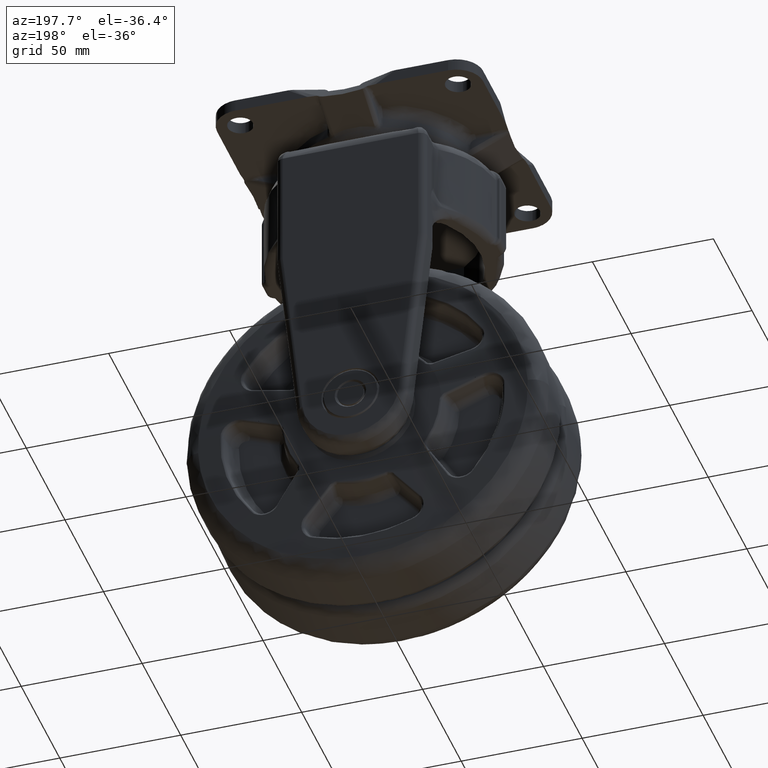
[diagram: clean part render]
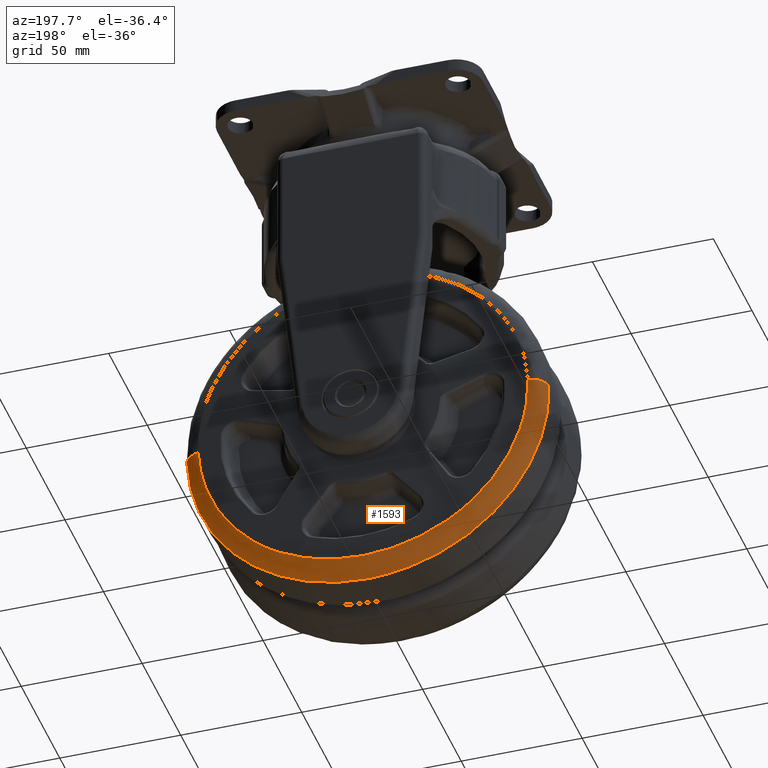
[diagram: same view with one face highlighted and labeled with its STEP entity id]
A machine part, auxiliary view. The second image highlights one B-rep face of the part: STEP entity #1593.
In plain terms, the highlighted face is a freeform B-spline surface patch.
Its self-contained STEP definition (entity closure, byte-faithful):
#973=CARTESIAN_POINT('',(0.0,20.747409571790790,-201.816297328990290));
#974=VERTEX_POINT('',#973);
#1039=CARTESIAN_POINT('',(-74.763135994239576,20.747423776865020,-124.180160174054390));
#1040=VERTEX_POINT('',#1039);
#1054=CARTESIAN_POINT('',(-74.763135994239576,20.747423776865023,-124.180160174054420));
#1055=CARTESIAN_POINT('',(-74.816295035986613,20.747423519746221,-125.589579438656910));
#1056=CARTESIAN_POINT('',(-74.816295023748012,20.747423262415840,-127.000000846838600));
#1057=CARTESIAN_POINT('',(-74.816294374547894,20.747409612235813,-201.816297305410640));
#1058=CARTESIAN_POINT('',(0.0,20.747409571790790,-201.816297328990290));
#1066=(BOUNDED_CURVE()B_SPLINE_CURVE(2,(#1054,#1055,#1056,#1057,#1058),.UNSPECIFIED.,.F.,.U.)B_SPLINE_CURVE_WITH_KNOTS((3,2,3),(0.743386526736868,0.750000000000000,1.0),.UNSPECIFIED.)CURVE()GEOMETRIC_REPRESENTATION_ITEM()RATIONAL_B_SPLINE_CURVE((0.984913606530816,0.992251834113699,1.0,0.707106781186547,1.0))REPRESENTATION_ITEM(''));
#1067=EDGE_CURVE('',#1040,#974,#1066,.T.);
#1106=CARTESIAN_POINT('',(74.763136060742937,20.747422751017151,-129.819839828453890));
#1107=VERTEX_POINT('',#1106);
#1108=CARTESIAN_POINT('',(0.0,20.747409571790790,-201.816297328990290));
#1109=CARTESIAN_POINT('',(72.047647402765833,20.747409613760894,-201.816297353459110));
#1110=CARTESIAN_POINT('',(74.763136060742937,20.747422751017151,-129.819839828453890));
#1118=(BOUNDED_CURVE()B_SPLINE_CURVE(2,(#1108,#1109,#1110),.UNSPECIFIED.,.F.,.U.)B_SPLINE_CURVE_WITH_KNOTS((3,3),(0.0,0.243386530899086),.UNSPECIFIED.)CURVE()GEOMETRIC_REPRESENTATION_ITEM()RATIONAL_B_SPLINE_CURVE((1.0,0.714854942196508,0.984913615767506))REPRESENTATION_ITEM(''));
#1119=EDGE_CURVE('',#974,#1107,#1118,.T.);
#1200=CARTESIAN_POINT('',(68.121653313829142,27.292200943322960,-129.569343155684810));
#1201=VERTEX_POINT('',#1200);
#1202=CARTESIAN_POINT('',(68.121653313829142,27.292200943322960,-129.569343155684830));
#1203=CARTESIAN_POINT('',(74.364059216399838,26.988864736283091,-129.804787859405790));
#1204=CARTESIAN_POINT('',(74.763136060742937,20.747422751017154,-129.819839828453920));
#1212=(BOUNDED_CURVE()B_SPLINE_CURVE(2,(#1202,#1203,#1204),.UNSPECIFIED.,.F.,.U.)B_SPLINE_CURVE_WITH_KNOTS((3,3),(-1.709076496446240,-0.280465581251247),.UNSPECIFIED.)CURVE()GEOMETRIC_REPRESENTATION_ITEM()RATIONAL_B_SPLINE_CURVE((0.889577354070573,0.664607206706167,0.892895360425759))REPRESENTATION_ITEM(''));
#1213=EDGE_CURVE('',#1201,#1107,#1212,.T.);
#1379=CARTESIAN_POINT('',(-68.121653290269720,27.292200944486211,-124.430656855273400));
#1380=VERTEX_POINT('',#1379);
#1394=CARTESIAN_POINT('',(-68.121653290269720,27.292200944486211,-124.430656855273400));
#1395=CARTESIAN_POINT('',(-74.364058292190890,26.988864802604969,-124.195212180487360));
#1396=CARTESIAN_POINT('',(-74.763135994239562,20.747423776865023,-124.180160174054380));
#1404=(BOUNDED_CURVE()B_SPLINE_CURVE(2,(#1394,#1395,#1396),.UNSPECIFIED.,.F.,.U.)B_SPLINE_CURVE_WITH_KNOTS((3,3),(-1.709076500112734,-0.280465738991367),.UNSPECIFIED.)CURVE()GEOMETRIC_REPRESENTATION_ITEM()RATIONAL_B_SPLINE_CURVE((0.889577355225333,0.664607230960358,0.892895310012877))REPRESENTATION_ITEM(''));
#1405=EDGE_CURVE('',#1380,#1040,#1404,.T.);
#1411=CARTESIAN_POINT('',(-67.589976238346310,27.299390518790716,-122.556429377088320));
#1412=CARTESIAN_POINT('',(-67.625441019539394,27.299390518790723,-123.496716210031390));
#1413=CARTESIAN_POINT('',(-70.213302108030362,27.299390518790727,-192.109340484948210));
#1414=CARTESIAN_POINT('',(-2.551980811541131,27.299390518790716,-194.661321296489210));
#1415=CARTESIAN_POINT('',(65.109340484948063,27.299390518790727,-197.213302108030320));
#1416=CARTESIAN_POINT('',(67.697201573439045,27.299390518790727,-128.600677833113680));
#1417=CARTESIAN_POINT('',(67.732666354632144,27.299390518790727,-127.660391000170580));
#1418=CARTESIAN_POINT('',(-74.710507794462885,27.422864195151444,-122.088303974429550));
#1419=CARTESIAN_POINT('',(-74.749708752344731,27.422864195151451,-123.127649017456380));
#1420=CARTESIAN_POINT('',(-77.610198232928411,27.422864195151458,-198.968539723103530));
#1421=CARTESIAN_POINT('',(-2.820829254912433,27.422864195151444,-201.789368978016060));
#1422=CARTESIAN_POINT('',(71.968539723103561,27.422864195151458,-204.610198232928380));
#1423=CARTESIAN_POINT('',(74.829029203687242,27.422864195151455,-128.769307527281230));
#1424=CARTESIAN_POINT('',(74.868230161569087,27.422864195151451,-127.729962484254400));
#1425=CARTESIAN_POINT('',(-74.698554404679371,20.288689709245219,-122.089089826631920));
#1426=CARTESIAN_POINT('',(-74.737749090560897,20.288689709245226,-123.128268578506660));
#1427=CARTESIAN_POINT('',(-77.597780903987115,20.288689709245226,-198.957025037514370));
#1428=CARTESIAN_POINT('',(-2.820377933236378,20.288689709245226,-201.777402970750790));
#1429=CARTESIAN_POINT('',(71.957025037514356,20.288689709245226,-204.597780903987170));
#1430=CARTESIAN_POINT('',(74.817056850940617,20.288689709245222,-128.769024444979440));
#1431=CARTESIAN_POINT('',(74.856251536822171,20.288689709245226,-127.729845693104780));
#1439=(BOUNDED_SURFACE()B_SPLINE_SURFACE(2,2,((#1411,#1418,#1425),(#1412,#1419,#1426),(#1413,#1420,#1427),(#1414,#1421,#1428),(#1415,#1422,#1429),(#1416,#1423,#1430),(#1417,#1424,#1431)),.UNSPECIFIED.,.F.,.F.,.U.)B_SPLINE_SURFACE_WITH_KNOTS((3,1,2,1,3),(3,3),(0.0,2.479667028828120,126.463018470231300,250.446369911634410,252.926036940462410),(0.0,11.756312226007900),.UNSPECIFIED.)GEOMETRIC_REPRESENTATION_ITEM()RATIONAL_B_SPLINE_SURFACE(((0.923881399524395,0.648343537570387,0.927574345031535),(0.918532098545507,0.644589609066181,0.922203661787536),(0.645717748622259,0.453139255351669,0.648298816343595),(0.913182797566620,0.640835680561975,0.916832978543537),(0.645717748622259,0.453139255351669,0.648298816343595),(0.918532098545507,0.644589609066181,0.922203661787535),(0.923881399524394,0.648343537570387,0.927574345031534)))REPRESENTATION_ITEM('')SURFACE());
#1440=ORIENTED_EDGE('',*,*,#1119,.F.);
#1441=ORIENTED_EDGE('',*,*,#1067,.F.);
#1442=ORIENTED_EDGE('',*,*,#1405,.F.);
#1443=CARTESIAN_POINT('',(-65.050352021042613,27.292200982749979,-147.386585614017090));
#1444=VERTEX_POINT('',#1443);
#1445=CARTESIAN_POINT('',(-68.121653290269720,27.292200944486211,-124.430656855273400));
#1446=CARTESIAN_POINT('',(-68.564551615599669,27.292200963108456,-136.173333675338370));
#1447=CARTESIAN_POINT('',(-65.050352021042599,27.292200982749982,-147.386585614017010));
#1455=(BOUNDED_CURVE()B_SPLINE_CURVE(2,(#1445,#1446,#1447),.UNSPECIFIED.,.F.,.U.)B_SPLINE_CURVE_WITH_KNOTS((3,3),(0.174537374707244,0.490427007918861),.UNSPECIFIED.)CURVE()GEOMETRIC_REPRESENTATION_ITEM()RATIONAL_B_SPLINE_CURVE((0.960001292416546,0.931458490598070,0.930618947146541))REPRESENTATION_ITEM(''));
#1456=EDGE_CURVE('',#1380,#1444,#1455,.T.);
#1457=ORIENTED_EDGE('',*,*,#1456,.T.);
#1458=CARTESIAN_POINT('',(-45.126405542180898,27.292201000003750,-178.095681749439510));
#1459=VERTEX_POINT('',#1458);
#1460=CARTESIAN_POINT('',(-65.050352021042599,27.292200982749982,-147.386585614017010));
#1461=CARTESIAN_POINT('',(-59.368086255029645,27.292200992200925,-165.517791850222380));
#1462=CARTESIAN_POINT('',(-45.126405542180898,27.292201000003750,-178.095681749439510));
#1470=(BOUNDED_CURVE()B_SPLINE_CURVE(2,(#1460,#1461,#1462),.UNSPECIFIED.,.F.,.U.)B_SPLINE_CURVE_WITH_KNOTS((3,3),(0.490427007918861,1.0),.UNSPECIFIED.)CURVE()GEOMETRIC_REPRESENTATION_ITEM()RATIONAL_B_SPLINE_CURVE((0.930618947146541,0.929264649241200,1.0))REPRESENTATION_ITEM(''));
#1471=EDGE_CURVE('',#1444,#1459,#1470,.T.);
#1472=ORIENTED_EDGE('',*,*,#1471,.T.);
#1473=CARTESIAN_POINT('',(-45.141463698413602,27.290811667394330,-178.119779836741490));
#1474=VERTEX_POINT('',#1473);
#1475=CARTESIAN_POINT('',(-45.126405542180898,27.292201000003750,-178.095681749439510));
#1476=CARTESIAN_POINT('',(-45.131425411070573,27.291756551513082,-178.103715218934500));
#1477=CARTESIAN_POINT('',(-45.136444817094102,27.291293475927169,-178.111747947689000));
#1478=CARTESIAN_POINT('',(-45.141463698413602,27.290811667394330,-178.119779836741490));
#1479=B_SPLINE_CURVE_WITH_KNOTS('',3,(#1475,#1476,#1477,#1478),.UNSPECIFIED.,.F.,.U.,(4,4),(0.000004208213952,0.000032659492948),.UNSPECIFIED.);
#1480=EDGE_CURVE('',#1459,#1474,#1479,.T.);
#1481=ORIENTED_EDGE('',*,*,#1480,.T.);
#1482=CARTESIAN_POINT('',(-40.069367436829303,27.292200999999949,-182.150765759147990));
#1483=VERTEX_POINT('',#1482);
#1484=CARTESIAN_POINT('',(-45.141463698413602,27.290811667394330,-178.119779836741490));
#1485=CARTESIAN_POINT('',(-43.505799575321511,27.291730011907841,-179.539186026161590));
#1486=CARTESIAN_POINT('',(-41.814895556215731,27.292191610936900,-180.882565477051400));
#1487=CARTESIAN_POINT('',(-40.069369539537483,27.292200999988641,-182.150764231441400));
#1488=CARTESIAN_POINT('',(-40.069367436829303,27.292200999999949,-182.150765759147990));
#1489=B_SPLINE_CURVE_WITH_KNOTS('',3,(#1484,#1485,#1486,#1487,#1488),.UNSPECIFIED.,.F.,.U.,(4,1,4),(0.0,99.999879537280961,100.0),.UNSPECIFIED.);
#1490=EDGE_CURVE('',#1474,#1483,#1489,.T.);
#1491=ORIENTED_EDGE('',*,*,#1490,.T.);
#1492=CARTESIAN_POINT('',(-34.668320571415727,27.290811667537099,-185.728963755242010));
#1493=VERTEX_POINT('',#1492);
#1494=CARTESIAN_POINT('',(-40.069367436829303,27.292200999999949,-182.150765759147990));
#1495=CARTESIAN_POINT('',(-38.323845549421627,27.292210277943589,-183.418961375765410));
#1496=CARTESIAN_POINT('',(-36.523701926578582,27.291786403420669,-184.611976656662790));
#1497=CARTESIAN_POINT('',(-34.668320571415727,27.290811667537099,-185.728963755242010));
#1498=B_SPLINE_CURVE_WITH_KNOTS('',3,(#1494,#1495,#1496,#1497),.UNSPECIFIED.,.F.,.U.,(4,4),(0.500000600784155,1.0),.UNSPECIFIED.);
#1499=EDGE_CURVE('',#1483,#1493,#1498,.T.);
#1500=ORIENTED_EDGE('',*,*,#1499,.T.);
#1501=CARTESIAN_POINT('',(-34.650055156583100,27.292201000003750,-185.707195881281510));
#1502=VERTEX_POINT('',#1501);
#1503=CARTESIAN_POINT('',(-34.668320571415727,27.290811667537099,-185.728963755242010));
#1504=CARTESIAN_POINT('',(-34.662232099882971,27.291274780935598,-185.721707797348300));
#1505=CARTESIAN_POINT('',(-34.656143628272133,27.291737891758871,-185.714451839361490));
#1506=CARTESIAN_POINT('',(-34.650055156583100,27.292201000003750,-185.707195881281510));
#1507=QUASI_UNIFORM_CURVE('',3,(#1503,#1504,#1505,#1506),.UNSPECIFIED.,.F.,.U.);
#1508=EDGE_CURVE('',#1493,#1502,#1507,.T.);
#1509=ORIENTED_EDGE('',*,*,#1508,.T.);
#1510=CARTESIAN_POINT('',(0.0,27.292200889650719,-195.170089994641590));
#1511=VERTEX_POINT('',#1510);
#1512=CARTESIAN_POINT('',(-34.650055156583100,27.292201000003750,-185.707195881281510));
#1513=CARTESIAN_POINT('',(-18.617180861993671,27.292200944825364,-195.170089997320840));
#1514=CARTESIAN_POINT('',(0.0,27.292200889650719,-195.170089994641590));
#1522=(BOUNDED_CURVE()B_SPLINE_CURVE(2,(#1512,#1513,#1514),.UNSPECIFIED.,.F.,.U.)CURVE()GEOMETRIC_REPRESENTATION_ITEM()QUASI_UNIFORM_CURVE()RATIONAL_B_SPLINE_CURVE((1.0,0.964672744658628,1.0))REPRESENTATION_ITEM(''));
#1523=EDGE_CURVE('',#1502,#1511,#1522,.T.);
#1524=ORIENTED_EDGE('',*,*,#1523,.T.);
#1525=CARTESIAN_POINT('',(34.650054874757998,27.292201000003750,-185.707196047619500));
#1526=VERTEX_POINT('',#1525);
#1527=CARTESIAN_POINT('',(0.0,27.292200889650719,-195.170089994641590));
#1528=CARTESIAN_POINT('',(18.617180686144067,27.292201000001874,-195.170089999966140));
#1529=CARTESIAN_POINT('',(34.650054874757998,27.292201000003750,-185.707196047619500));
#1537=(BOUNDED_CURVE()B_SPLINE_CURVE(2,(#1527,#1528,#1529),.UNSPECIFIED.,.F.,.U.)CURVE()GEOMETRIC_REPRESENTATION_ITEM()QUASI_UNIFORM_CURVE()RATIONAL_B_SPLINE_CURVE((1.0,0.964672745290979,1.0))REPRESENTATION_ITEM(''));
#1538=EDGE_CURVE('',#1511,#1526,#1537,.T.);
#1539=ORIENTED_EDGE('',*,*,#1538,.T.);
#1540=CARTESIAN_POINT('',(34.668320291537000,27.290811667394330,-185.728963923736500));
#1541=VERTEX_POINT('',#1540);
#1542=CARTESIAN_POINT('',(34.650054874757998,27.292201000003750,-185.707196047619500));
#1543=CARTESIAN_POINT('',(34.656144801261057,27.291756486274160,-185.714453739425100));
#1544=CARTESIAN_POINT('',(34.662233275999377,27.291293407101179,-185.721709701084590));
#1545=CARTESIAN_POINT('',(34.668320291537000,27.290811667394330,-185.728963923736500));
#1546=B_SPLINE_CURVE_WITH_KNOTS('',3,(#1542,#1543,#1544,#1545),.UNSPECIFIED.,.F.,.U.,(4,4),(0.0,0.999948616210139),.UNSPECIFIED.);
#1547=EDGE_CURVE('',#1526,#1541,#1546,.T.);
#1548=ORIENTED_EDGE('',*,*,#1547,.T.);
#1549=CARTESIAN_POINT('',(40.069365812993098,27.292200999999949,-182.150766938934510));
#1550=VERTEX_POINT('',#1549);
#1551=CARTESIAN_POINT('',(34.668320291537000,27.290811667394330,-185.728963923736500));
#1552=CARTESIAN_POINT('',(36.523701170185497,27.291730010626939,-184.611977123703410));
#1553=CARTESIAN_POINT('',(38.323844345211299,27.292191609101462,-183.418962180132810));
#1554=CARTESIAN_POINT('',(40.069365812993098,27.292200999999949,-182.150766938934510));
#1555=B_SPLINE_CURVE_WITH_KNOTS('',3,(#1551,#1552,#1553,#1554),.UNSPECIFIED.,.F.,.U.,(4,4),(0.0,0.499999270931349),.UNSPECIFIED.);
#1556=EDGE_CURVE('',#1541,#1550,#1555,.T.);
#1557=ORIENTED_EDGE('',*,*,#1556,.T.);
#1558=CARTESIAN_POINT('',(45.141463451678902,27.290811667537099,-178.119780050854500));
#1559=VERTEX_POINT('',#1558);
#1560=CARTESIAN_POINT('',(40.069365812993098,27.292200999999949,-182.150766938934510));
#1561=CARTESIAN_POINT('',(40.069368363546083,27.292200889404992,-182.150765085861310));
#1562=CARTESIAN_POINT('',(41.814894852935439,27.292210279615482,-180.882566029117410));
#1563=CARTESIAN_POINT('',(43.505799317050553,27.291786404581501,-179.539186237035890));
#1564=CARTESIAN_POINT('',(45.141463451678902,27.290811667537099,-178.119780050854500));
#1565=B_SPLINE_CURVE_WITH_KNOTS('',3,(#1560,#1561,#1562,#1563,#1564),.UNSPECIFIED.,.F.,.U.,(4,1,4),(0.0,0.000146119089804,100.0),.UNSPECIFIED.);
#1566=EDGE_CURVE('',#1550,#1559,#1565,.T.);
#1567=ORIENTED_EDGE('',*,*,#1566,.T.);
#1568=CARTESIAN_POINT('',(45.126405296937293,27.292200999999949,-178.095681966137510));
#1569=VERTEX_POINT('',#1568);
#1570=CARTESIAN_POINT('',(45.141463451678902,27.290811667537099,-178.119780050854500));
#1571=CARTESIAN_POINT('',(45.136444066829434,27.291274780934330,-178.111747356051890));
#1572=CARTESIAN_POINT('',(45.131424681915590,27.291737891756341,-178.103714661146310));
#1573=CARTESIAN_POINT('',(45.126405296937293,27.292200999999949,-178.095681966137510));
#1574=QUASI_UNIFORM_CURVE('',3,(#1570,#1571,#1572,#1573),.UNSPECIFIED.,.F.,.U.);
#1575=EDGE_CURVE('',#1559,#1569,#1574,.T.);
#1576=ORIENTED_EDGE('',*,*,#1575,.T.);
#1577=CARTESIAN_POINT('',(45.126405296937293,27.292200999999949,-178.095681966137510));
#1578=CARTESIAN_POINT('',(67.020700064795093,27.292200971661455,-158.759198320115590));
#1579=CARTESIAN_POINT('',(68.121653313829142,27.292200943322960,-129.569343155684810));
#1587=(BOUNDED_CURVE()B_SPLINE_CURVE(2,(#1577,#1578,#1579),.UNSPECIFIED.,.F.,.U.)B_SPLINE_CURVE_WITH_KNOTS((3,3),(0.0,0.754701210825024),.UNSPECIFIED.)CURVE()GEOMETRIC_REPRESENTATION_ITEM()RATIONAL_B_SPLINE_CURVE((1.0,0.895237668213588,0.948603853723292))REPRESENTATION_ITEM(''));
#1588=EDGE_CURVE('',#1569,#1201,#1587,.T.);
#1589=ORIENTED_EDGE('',*,*,#1588,.T.);
#1590=ORIENTED_EDGE('',*,*,#1213,.T.);
#1591=EDGE_LOOP('',(#1440,#1441,#1442,#1457,#1472,#1481,#1491,#1500,#1509,#1524,#1539,#1548,#1557,#1567,#1576,#1589,#1590));
#1592=FACE_OUTER_BOUND('',#1591,.T.);
#1593=ADVANCED_FACE('',(#1592),#1439,.T.);